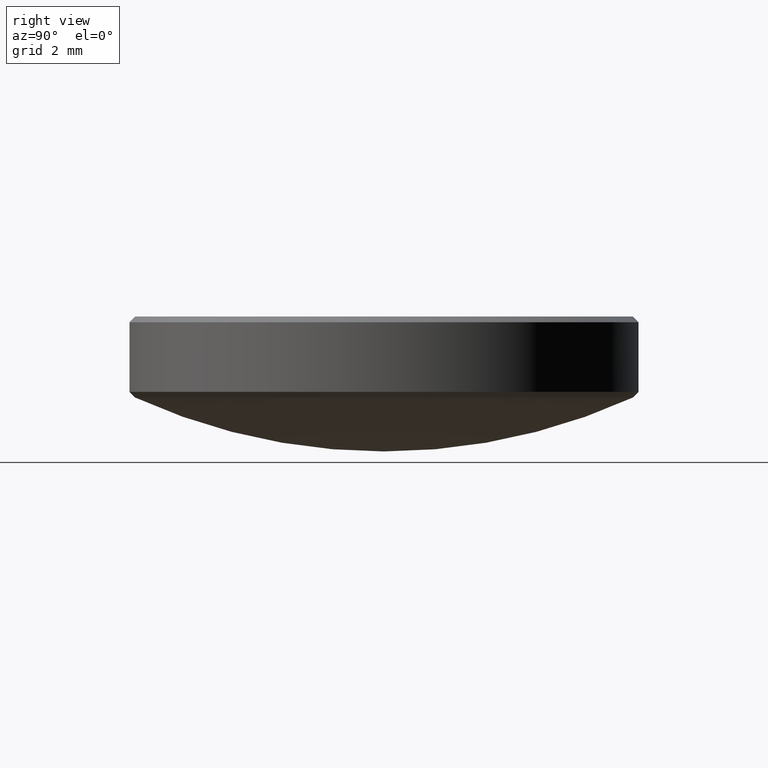
[diagram: clean part render]
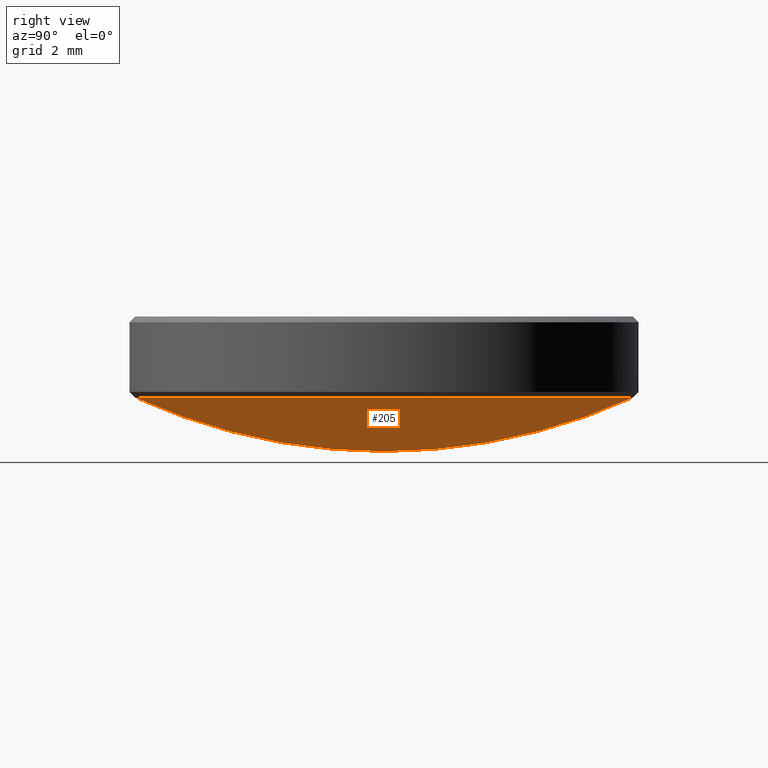
[diagram: same view with one face highlighted and labeled with its STEP entity id]
A machine part, right view. The second image highlights one B-rep face of the part: STEP entity #205.
In plain terms, the highlighted spherical surface has radius 15 mm.
Its self-contained STEP definition (entity closure, byte-faithful):
#2 = CARTESIAN_POINT ( 'NONE',  ( 0.0000000000000000000, -0.2444322300693973200, -0.01364043630470037100 ) ) ;
#17 = VERTEX_POINT ( 'NONE', #20 ) ;
#20 = CARTESIAN_POINT ( 'NONE',  ( 2.993431481629367800E-017, 0.2444322300693973800, -0.01364043630470025500 ) ) ;
#26 = CARTESIAN_POINT ( 'NONE',  ( 0.0000000000000000000, 1.196739014448673000E-017, -0.01364043630470035400 ) ) ;
#56 = CARTESIAN_POINT ( 'NONE',  ( 0.0000000000000000000, 0.0000000000000000000, 0.5239500978425223300 ) ) ;
#72 = EDGE_CURVE ( 'NONE', #208, #17, #155, .T. ) ;
#73 = DIRECTION ( 'NONE',  ( 0.0000000000000000000, -1.000000000000000000, -1.833611759518356000E-016 ) ) ;
#90 = DIRECTION ( 'NONE',  ( 1.224646799147353200E-016, 1.000000000000000000, 0.0000000000000000000 ) ) ;
#95 = SPHERICAL_SURFACE ( 'NONE', #96, 0.5905511811023621500 ) ;
#96 = AXIS2_PLACEMENT_3D ( 'NONE', #56, #150, #286 ) ;
#97 = FACE_OUTER_BOUND ( 'NONE', #225, .T. ) ;
#135 = AXIS2_PLACEMENT_3D ( 'NONE', #262, #288, #256 ) ;
#150 = DIRECTION ( 'NONE',  ( 1.000000000000000000, 0.0000000000000000000, 0.0000000000000000000 ) ) ;
#155 = CIRCLE ( 'NONE', #296, 0.5905511811023621500 ) ;
#156 = AXIS2_PLACEMENT_3D ( 'NONE', #26, #211, #73 ) ;
#174 = DIRECTION ( 'NONE',  ( 1.000000000000000000, -1.224646799147353200E-016, -2.249565377136128300E-032 ) ) ;
#203 = ORIENTED_EDGE ( 'NONE', *, *, #302, .F. ) ;
#205 = ADVANCED_FACE ( 'NONE', ( #97 ), #95, .T. ) ;
#207 = CIRCLE ( 'NONE', #156, 0.2444322300693973200 ) ;
#208 = VERTEX_POINT ( 'NONE', #310 ) ;
#211 = DIRECTION ( 'NONE',  ( -0.0000000000000000000, -1.836909530733566100E-016, 1.000000000000000000 ) ) ;
#217 = VERTEX_POINT ( 'NONE', #2 ) ;
#220 = ORIENTED_EDGE ( 'NONE', *, *, #72, .T. ) ;
#225 = EDGE_LOOP ( 'NONE', ( #253, #220, #203 ) ) ;
#253 = ORIENTED_EDGE ( 'NONE', *, *, #283, .F. ) ;
#256 = DIRECTION ( 'NONE',  ( 0.0000000000000000000, 0.0000000000000000000, 1.000000000000000000 ) ) ;
#262 = CARTESIAN_POINT ( 'NONE',  ( 0.0000000000000000000, 0.0000000000000000000, 0.5239500978425223300 ) ) ;
#283 = EDGE_CURVE ( 'NONE', #208, #217, #313, .T. ) ;
#286 = DIRECTION ( 'NONE',  ( 0.0000000000000000000, -1.000000000000000000, -2.312964634635743000E-016 ) ) ;
#288 = DIRECTION ( 'NONE',  ( -1.000000000000000000, 0.0000000000000000000, -0.0000000000000000000 ) ) ;
#296 = AXIS2_PLACEMENT_3D ( 'NONE', #318, #174, #90 ) ;
#302 = EDGE_CURVE ( 'NONE', #217, #17, #207, .T. ) ;
#310 = CARTESIAN_POINT ( 'NONE',  ( 0.0000000000000000000, 7.231807861180451000E-017, -0.06660108325983987700 ) ) ;
#313 = CIRCLE ( 'NONE', #135, 0.5905511811023621500 ) ;
#318 = CARTESIAN_POINT ( 'NONE',  ( 0.0000000000000000000, 0.0000000000000000000, 0.5239500978425223300 ) ) ;